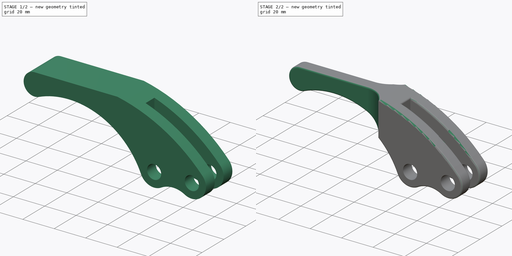
[diagram: build sequence overview — one tinted view per stage of 2, left to right]
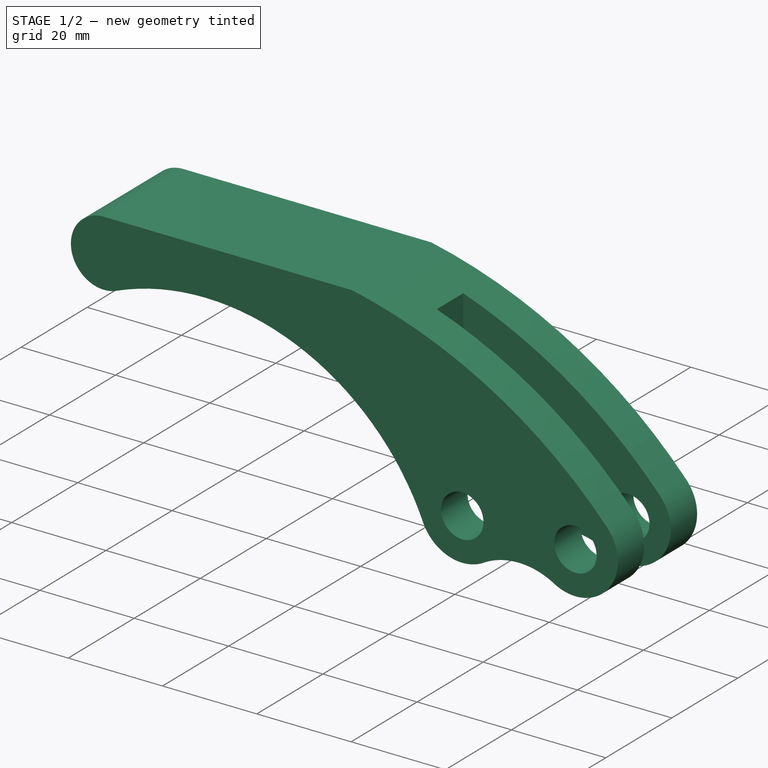
[diagram: stage 1 of 2 — iso view after this stage's code; geometry added in this stage tinted green]
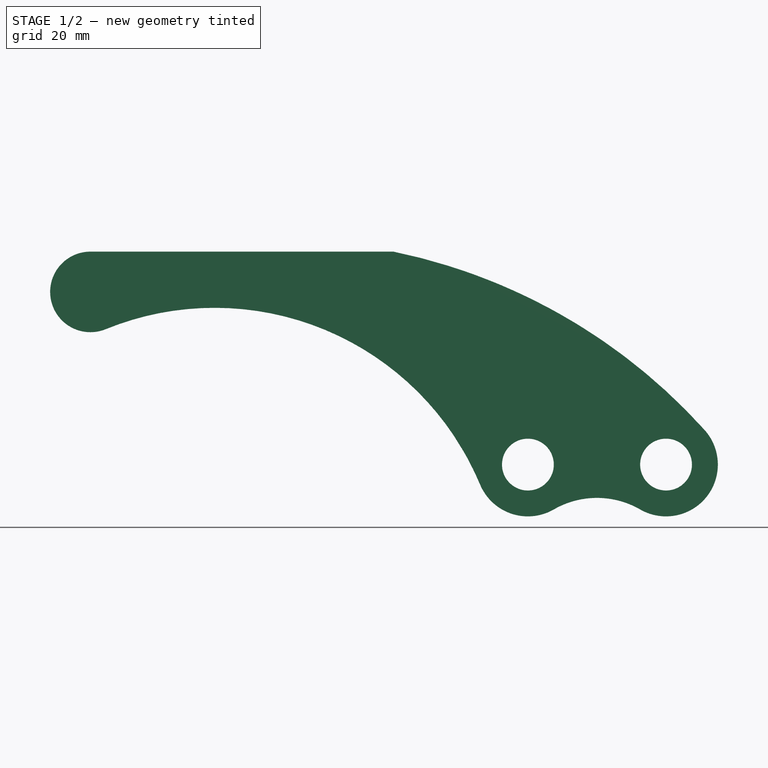
[diagram: stage 1 of 2 — front view after this stage's code; geometry added in this stage tinted green]
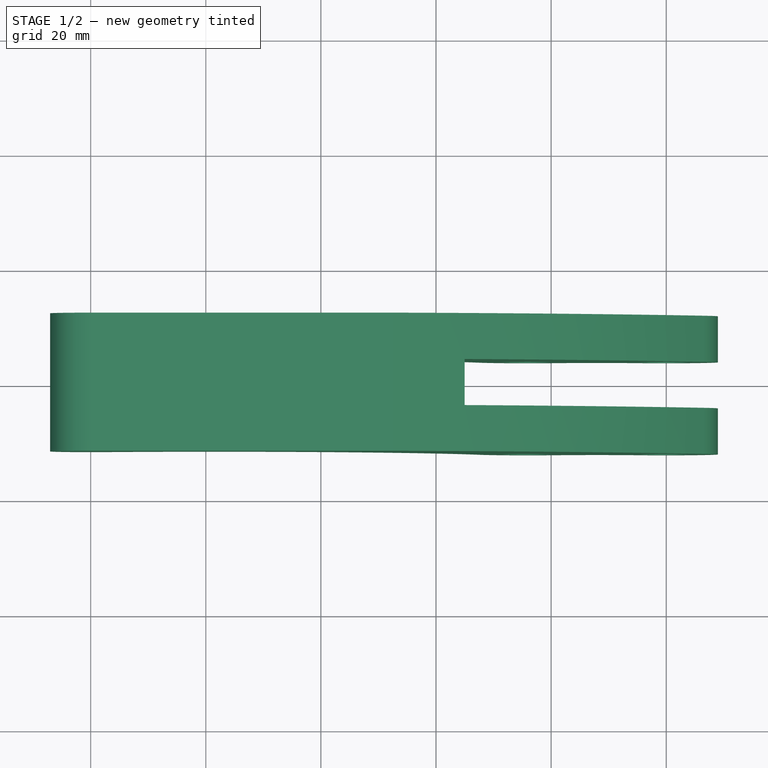
[diagram: stage 1 of 2 — top view after this stage's code; geometry added in this stage tinted green]
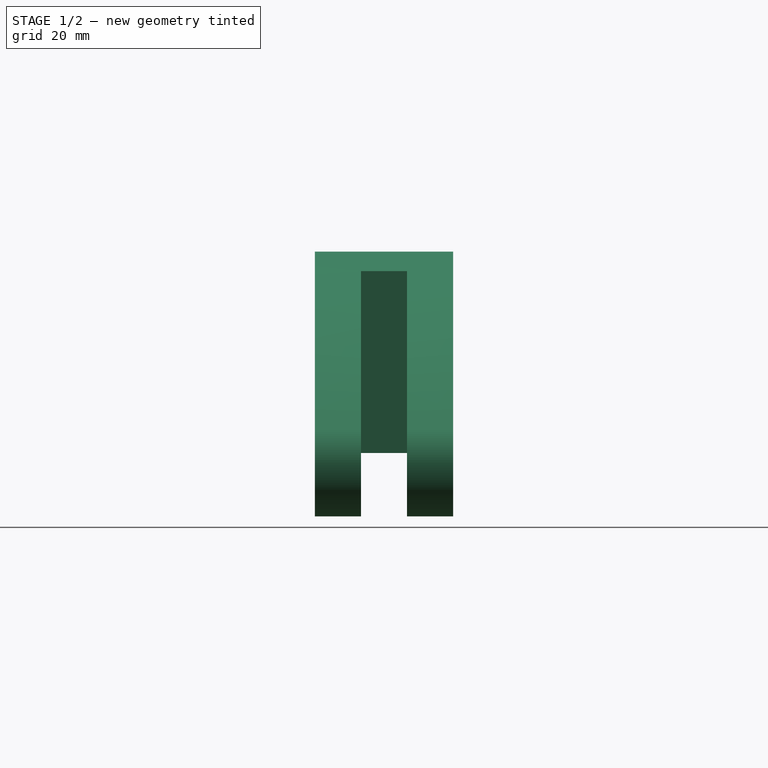
[diagram: stage 1 of 2 — right view after this stage's code; geometry added in this stage tinted green]
FCSTD DOCUMENT  (FreeCAD 0.21R33771 (Git))
Label: ex75
License: All rights reserved
LicenseURL: https://en.wikipedia.org/wiki/All_rights_reserved
objects: Sketcher::SketchObject×3, PartDesign::Pocket×2, PartDesign::Pad×1, PartDesign::Fillet×1, PartDesign::Body×1
note: 12 computed .brp shape members not serialized (recipe doc carries the construction recipe); baked Part::Feature solids carry a one-line shape summary decoded from their .brp

FEATURE [Sketcher::SketchObject] Sketch
  FullyConstrained = false
  MapMode = 5
  Placement = pos=(0,0,0) rot=(1,0,0;1.5708rad)
  Support = -> [XZ_Plane]
  sketch-geometry (10):
    g0: Circle CenterX=15.9598 CenterY=0 CenterZ=0 NormalX=0 NormalY=0 NormalZ=1 AngleXU=0 Radius=4.5
    g1: Circle CenterX=39.9598 CenterY=0 CenterZ=0 NormalX=0 NormalY=0 NormalZ=1 AngleXU=0 Radius=4.5
    g2: ArcOfCircle CenterX=15.9598 CenterY=0 CenterZ=0 NormalX=0 NormalY=0 NormalZ=1 AngleXU=0 Radius=9 StartAngle=3.53767 EndAngle=5.23599
    g3: ArcOfCircle CenterX=39.9598 CenterY=0 CenterZ=0 NormalX=0 NormalY=0 NormalZ=1 AngleXU=0 Radius=9 StartAngle=4.18879 EndAngle=7.01685
    g4: ArcOfCircle CenterX=27.9598 CenterY=-20.7846 CenterZ=0 NormalX=0 NormalY=0 NormalZ=1 AngleXU=0 Radius=15 StartAngle=1.0472 EndAngle=2.0944
    g5: ArcOfCircle CenterX=-27.6284 CenterY=-60.9331 CenterZ=0 NormalX=0 NormalY=0 NormalZ=1 AngleXU=0 Radius=100 StartAngle=0.733662 EndAngle=1.36713
    g6: LineSegment StartX=-7.40185 StartY=37 StartZ=0 EndX=-60.0402 EndY=37 EndZ=0
    g7: ArcOfCircle CenterX=-38.4726 CenterY=-22.7621 CenterZ=0 NormalX=0 NormalY=0 NormalZ=1 AngleXU=0 Radius=50 StartAngle=0.396073 EndAngle=1.95884
    g8: ArcOfCircle CenterX=-60.0402 CenterY=30 CenterZ=0 NormalX=0 NormalY=0 NormalZ=1 AngleXU=0 Radius=7 StartAngle=1.5708 EndAngle=5.10043
    g9: GeomPoint X=-67.0402 Y=30 Z=0
  constraints (25):
    c: PointOnObject(g0,g-1)
    c: PointOnObject(g1,g-1)
    c: Equal(g1,g0)
    c: DistanceX(g0,g1) = 24
    c: Diameter(g0) = 9
    c: Coincident(g2,g0)
    c: Coincident(g3,g1)
    c: Equal(g2,g3)
    c: Radius(g2) = 9
    c: Radius(g4) = 15
    c: Horizontal(g6)
    c: Radius(g5) = 100
    c: Coincident(g5,g6)
    c: Tangent(g3,g5) = -1.5708
    c: Tangent(g3,g4) = 1.5708
    c: Radius(g7) = 50
    c: Radius(g8) = 7
    c: Tangent(g2,g4) = 1.5708
    c: Tangent(g2,g7) = 1.5708
    c: PointOnObject(g9,g8)
    c: Horizontal(g9,g8)
    c: DistanceY(g-1,g8) = 30
    c: DistanceX(g8,g1) = 100
    c: Tangent(g8,g7) = 1.5708
    c: Tangent(g8,g6) = -1.5708
FEATURE [PartDesign::Pad] Pad
  Direction = (0,-1,2e-16)
  Length = 24
  Length2 = 10
  Midplane = true
  Placement = pos=(0,0,0) rot=(1,0,0;1.5708rad)
  Profile = -> Sketch
  ReferenceAxis = -> Sketch [N_Axis]
  Type = 0
FEATURE [Sketcher::SketchObject] Sketch001
  ExternalGeometry = -> [Pad]
  FullyConstrained = false
  MapMode = 5
  Support = -> [XY_Plane]
  sketch-geometry (7):
    g0: LineSegment StartX=63.6792 StartY=-4 StartZ=0 EndX=63.6792 EndY=4 EndZ=0
    g1: LineSegment StartX=63.6792 StartY=4 StartZ=0 EndX=4.95977 EndY=4 EndZ=0
    g2: LineSegment StartX=4.95977 StartY=4 StartZ=0 EndX=4.95977 EndY=-4 EndZ=0
    g3: LineSegment StartX=4.95977 StartY=-4 StartZ=0 EndX=63.6792 EndY=-4 EndZ=0
    g4: GeomPoint X=34.3195 Y=0 Z=0
    g5: LineSegment StartX=44.4598 StartY=12 StartZ=0 EndX=44.4598 EndY=-12 EndZ=0
    g6: GeomPoint X=44.4598 Y=4 Z=0
  constraints (16):
    c: Coincident(g0,g1)
    c: Coincident(g1,g2)
    c: Coincident(g2,g3)
    c: Coincident(g3,g0)
    c: Horizontal(g1)
    c: Horizontal(g3)
    c: Vertical(g0)
    c: Vertical(g2)
    c: Symmetric(g1,g0,g4)
    c: PointOnObject(g4,g-1)
    c: DistanceY(g0,g0) = 8
    c: Coincident(g5,g-4)
    c: Coincident(g5,g-3)
    c: PointOnObject(g6,g1)
    c: Vertical(g6,g5)
    c: DistanceX(g1,g6) = 39.5
FEATURE [PartDesign::Pocket] Pocket
  BaseFeature = -> Pad
  Direction = (0,0,-1)
  Length = 5
  Length2 = 5
  Midplane = true
  Placement = pos=(0,0,0) rot=(1,0,0;1.5708rad)
  Profile = -> Sketch001
  ReferenceAxis = -> Sketch001 [N_Axis]
  Type = 1
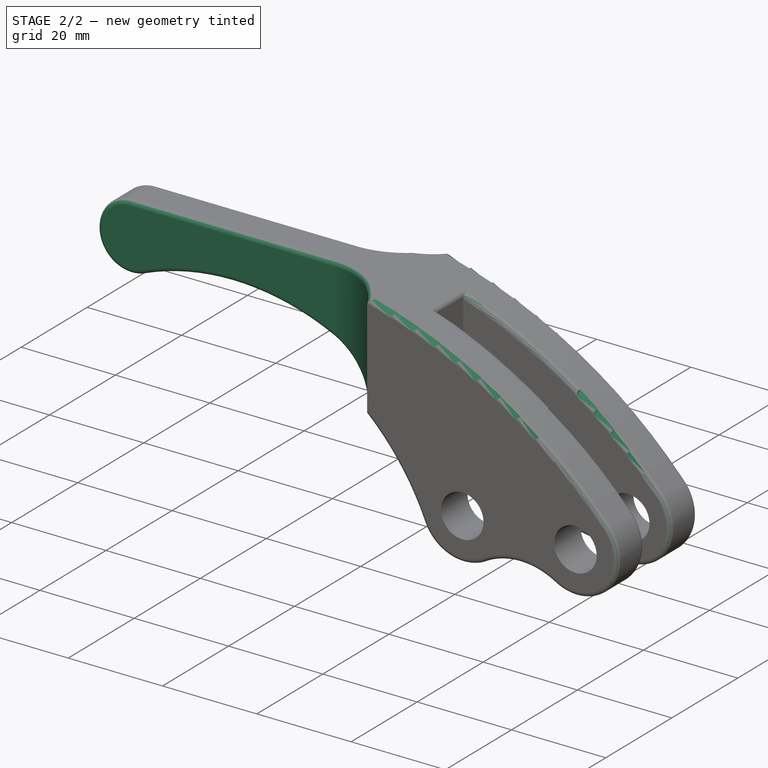
[diagram: stage 2 of 2 — iso view after this stage's code; geometry added in this stage tinted green]
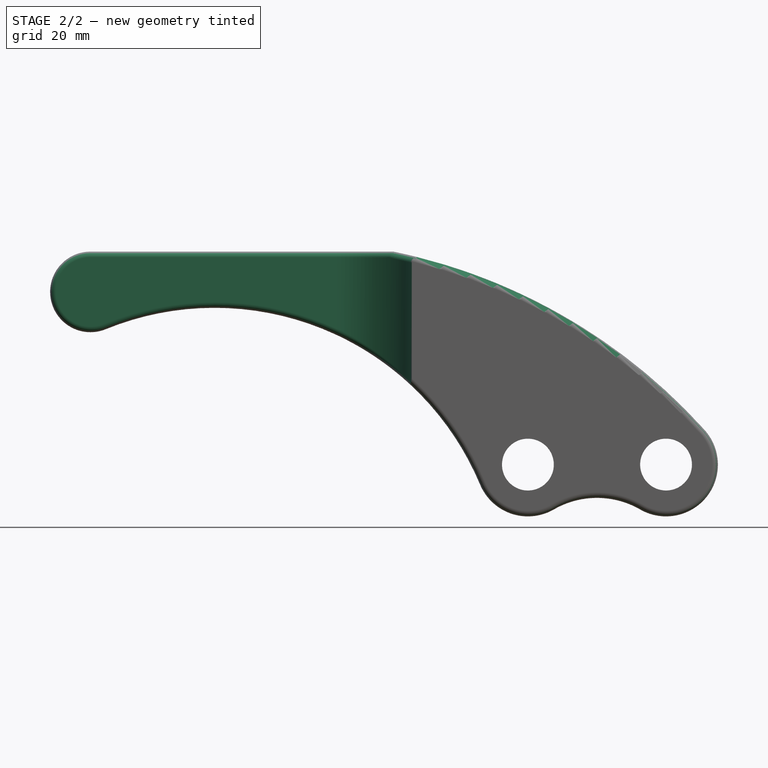
[diagram: stage 2 of 2 — front view after this stage's code; geometry added in this stage tinted green]
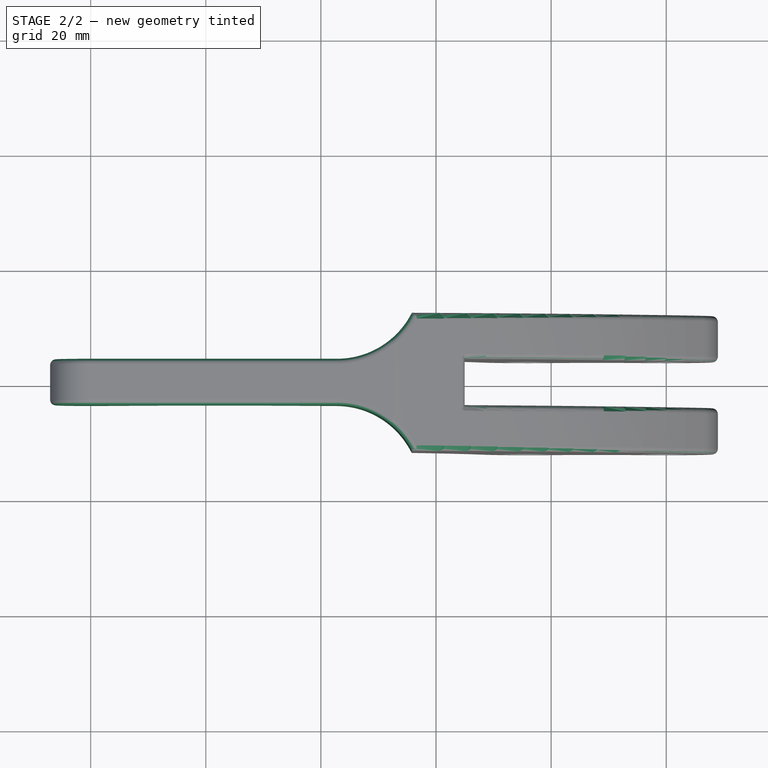
[diagram: stage 2 of 2 — top view after this stage's code; geometry added in this stage tinted green]
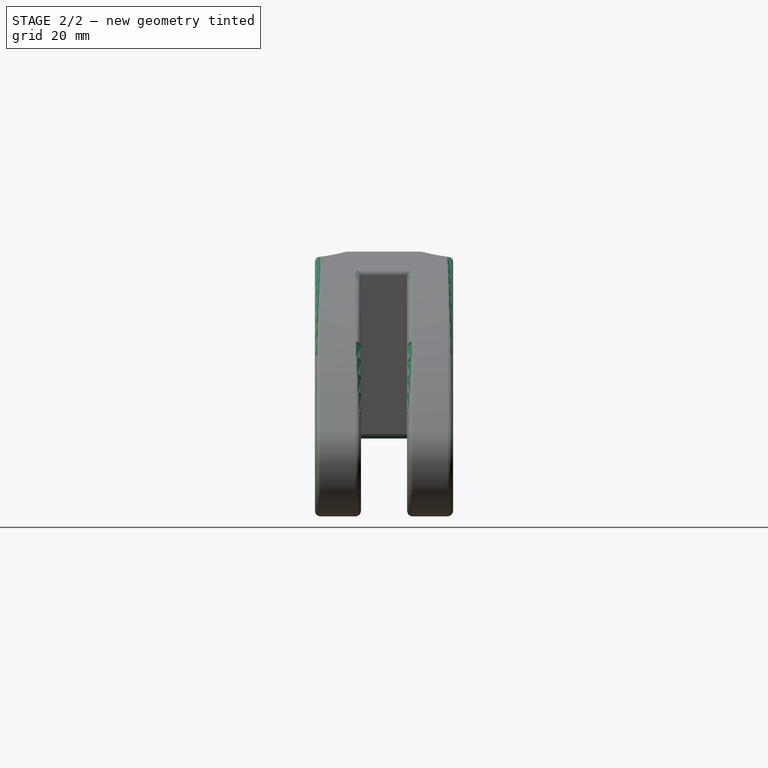
[diagram: stage 2 of 2 — right view after this stage's code; geometry added in this stage tinted green]
FEATURE [Sketcher::SketchObject] Sketch002
  FullyConstrained = false
  MapMode = 5
  Support = -> [XY_Plane]
  sketch-geometry (13):
    g0: ArcOfCircle CenterX=-17.1765 CenterY=18.4983 CenterZ=0 NormalX=0 NormalY=0 NormalZ=1 AngleXU=0 Radius=14.4983 StartAngle=4.71239 EndAngle=6.28319
    g1: ArcOfCircle CenterX=-17.1765 CenterY=-18.4983 CenterZ=0 NormalX=0 NormalY=0 NormalZ=1 AngleXU=0 Radius=14.4983 StartAngle=0 EndAngle=1.5708
    g2: LineSegment StartX=-17.1765 StartY=4 StartZ=0 EndX=-74.7454 EndY=4 EndZ=0
    g3: LineSegment StartX=-74.7454 StartY=4 StartZ=0 EndX=-74.7454 EndY=-4 EndZ=0
    g4: LineSegment StartX=-74.7454 StartY=-4 StartZ=0 EndX=-17.1765 EndY=-4 EndZ=0
    g5: GeomPoint X=-2.67819 Y=18.4983 Z=0
    g6: GeomPoint X=-2.67819 Y=-18.4983 Z=0
    g7: LineSegment StartX=-2.67819 StartY=18.4983 StartZ=0 EndX=-2.67819 EndY=-18.4983 EndZ=0
    g8: LineSegment StartX=-2.67819 StartY=18.4983 StartZ=0 EndX=-105.063 EndY=18.4983 EndZ=0
    g9: LineSegment StartX=-105.063 StartY=18.4983 StartZ=0 EndX=-105.063 EndY=-18.4983 EndZ=0
    g10: LineSegment StartX=-105.063 StartY=-18.4983 StartZ=0 EndX=-2.67819 EndY=-18.4983 EndZ=0
    g11: LineSegment StartX=-2.67819 StartY=-18.4983 StartZ=0 EndX=-2.67819 EndY=-18.4983 EndZ=0
    g12: LineSegment StartX=-2.67819 StartY=18.4983 StartZ=0 EndX=-2.67819 EndY=18.4983 EndZ=0
  constraints (26):
    c: Symmetric(g1,g0,g-1)
    c: Coincident(g2,g3)
    c: Coincident(g3,g4)
    c: Horizontal(g2)
    c: Horizontal(g4)
    c: Symmetric(g2,g3,g-1)
    c: Symmetric(g5,g6,g-1)
    c: Coincident(g7,g5)
    c: Coincident(g7,g6)
    c: Coincident(g8,g9)
    c: Coincident(g9,g10)
    c: Coincident(g10,g11)
    c: Coincident(g12,g8)
    c: Horizontal(g8)
    c: Horizontal(g10)
    c: Vertical(g9)
    c: Coincident(g8,g5)
    c: Coincident(g10,g6)
    c: PointOnObject(g11,g1)
    c: PointOnObject(g12,g0)
    c: Tangent(g0,g7) = 1.5708
    c: Coincident(g0,g2)
    c: DistanceY(g3,g3) = 8
    c: Vertical(g0,g0)
    c: Vertical(g0,g4)
    c: Coincident(g1,g4)
FEATURE [PartDesign::Pocket] Pocket001
  BaseFeature = -> Pocket
  Direction = (0,0,-1)
  Length = 5
  Length2 = 5
  Midplane = true
  Placement = pos=(0,0,0) rot=(1,0,0;1.5708rad)
  Profile = -> Sketch002
  ReferenceAxis = -> Sketch002 [N_Axis]
  Type = 1
FEATURE [PartDesign::Fillet] Fillet
  Base = -> Pocket001 [Edge17,Edge36,Edge35,Edge28,Edge47,Edge42,Edge33,Edge32,Edge49,Edge23,Edge24,Edge25,Edge51,Edge50,Edge52,Edge16,Edge6,Edge7,Edge37,Edge30,Edge44,Edge43,Edge21,Edge20,Edge9,Edge1,Edge5,Edge58,Edge55,Edge27,Edge3,Edge15,Edge12,Edge57]
  BaseFeature = -> Pocket001
  Placement = pos=(0,0,0) rot=(1,0,0;1.5708rad)
  Radius = 1
  SupportTransform = false
  UseAllEdges = false
FEATURE [PartDesign::Body] Body
  Group = -> [Sketch,Pad,Sketch001,Pocket,Sketch002,Pocket001,Fillet]
  Origin = -> Origin
  Tip = -> Fillet
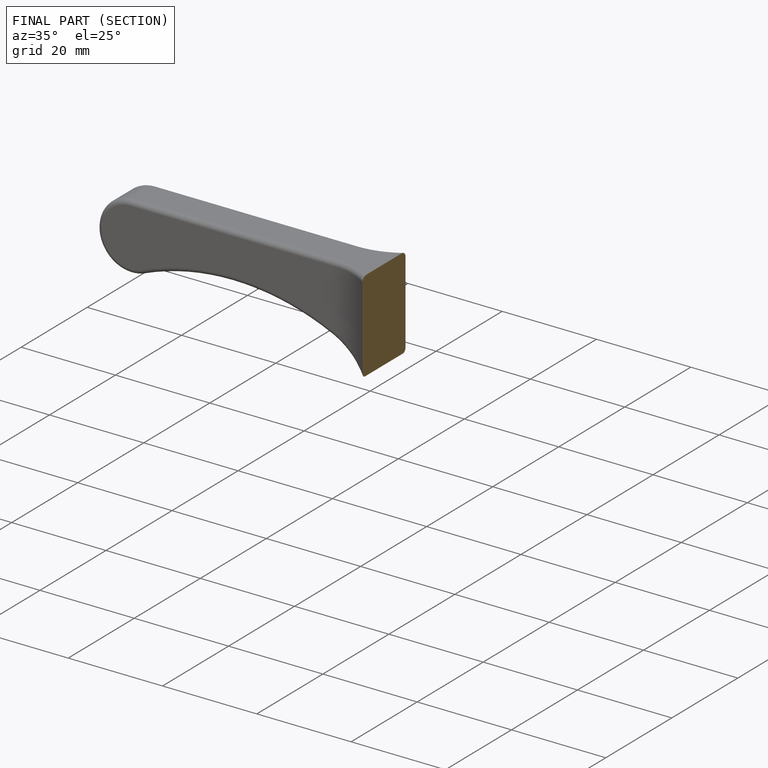
[diagram: finished part — half-section view (interior)]
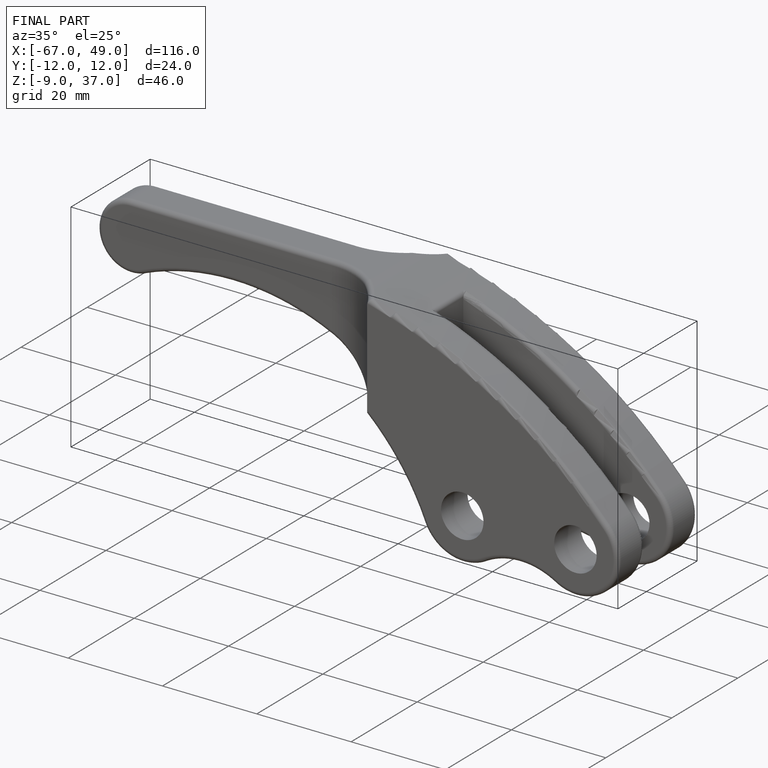
[diagram: finished part — iso view with bounding-box wireframe]
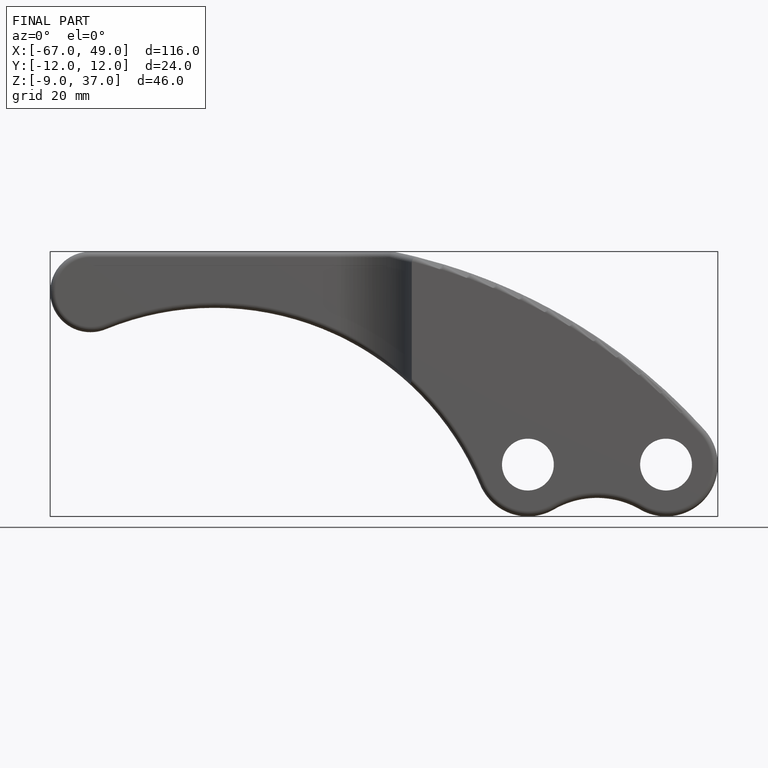
[diagram: finished part — front view with bounding-box wireframe]
